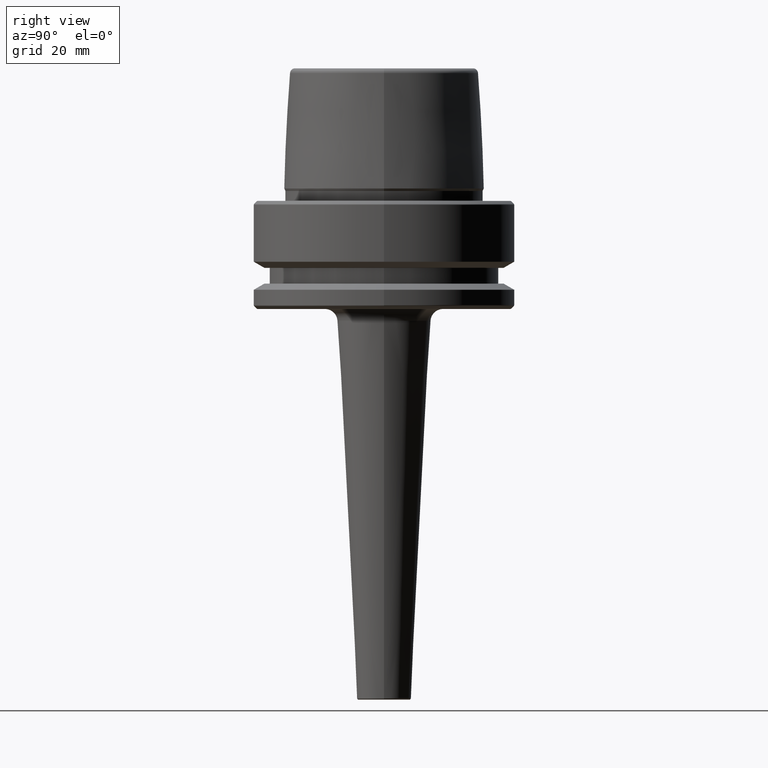
[diagram: clean part render]
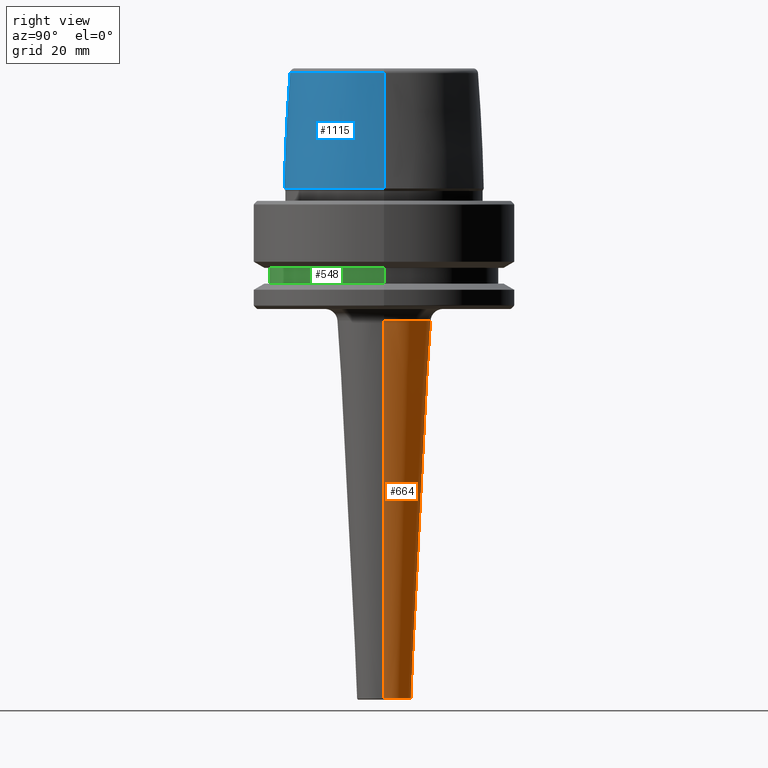
[diagram: same view with three faces highlighted in distinct colors, each labeled with its STEP entity id]
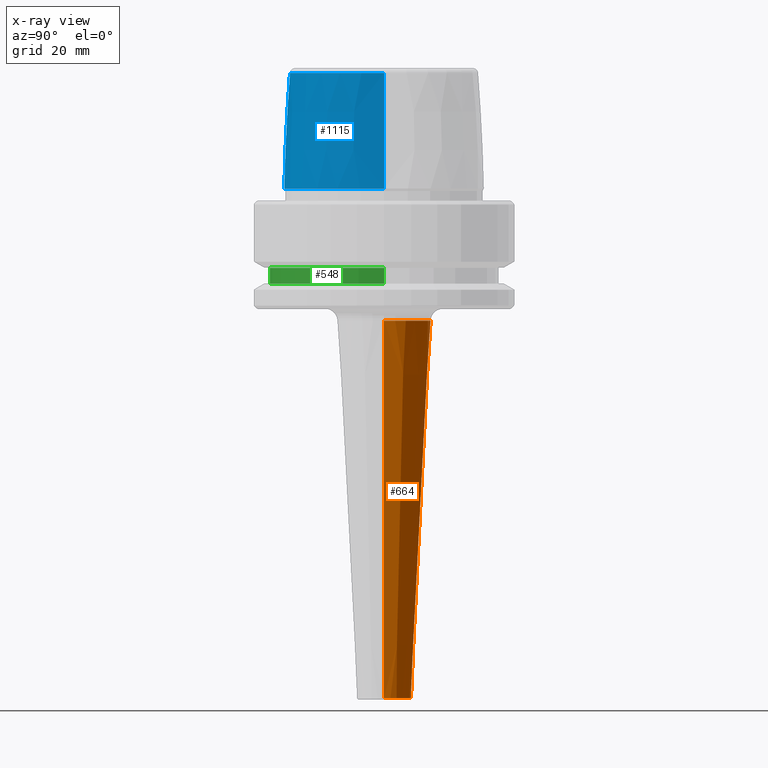
[diagram: x-ray of the same camera — body ghosted, the three highlighted faces saturated]
A machine part, right view with three faces highlighted in distinct colors.
The next image is the same camera in x-ray (body ghosted, the three faces saturated) — at least one of them is partly hidden behind the body in this view.
Their STEP definitions:

[orange] entity #664 — the highlighted conical surface has half-angle 3 deg.
#53 = DIRECTION ( 'NONE',  ( 1.000000000000000000, 0.0000000000000000000, 0.0000000000000000000 ) ) ;
#54 = DIRECTION ( 'NONE',  ( -0.0000000000000000000, -0.0000000000000000000, 1.000000000000000000 ) ) ;
#55 = EDGE_CURVE ( 'NONE', #398, #419, #407, .T. ) ;
#97 = ORIENTED_EDGE ( 'NONE', *, *, #804, .F. ) ;
#116 = DIRECTION ( 'NONE',  ( -0.0000000000000000000, -0.0000000000000000000, 1.000000000000000000 ) ) ;
#182 = AXIS2_PLACEMENT_3D ( 'NONE', #702, #116, #798 ) ;
#191 = DIRECTION ( 'NONE',  ( 0.05233595624294396000, 0.0000000000000000000, 0.9986295347545739400 ) ) ;
#221 = ORIENTED_EDGE ( 'NONE', *, *, #55, .T. ) ;
#235 = DIRECTION ( 'NONE',  ( 0.0000000000000000000, 0.0000000000000000000, -1.000000000000000000 ) ) ;
#250 = DIRECTION ( 'NONE',  ( -0.05233595624294396000, 6.409306129323725600E-018, 0.9986295347545739400 ) ) ;
#398 = VERTEX_POINT ( 'NONE', #848 ) ;
#407 = CIRCLE ( 'NONE', #1021, 11.27733634848680000 ) ;
#419 = VERTEX_POINT ( 'NONE', #667 ) ;
#473 = CONICAL_SURFACE ( 'NONE', #777, 6.519865987215876400, 0.05235987755983000800 ) ;
#541 = DIRECTION ( 'NONE',  ( 1.000000000000000000, 0.0000000000000000000, 0.0000000000000000000 ) ) ;
#634 = EDGE_CURVE ( 'NONE', #1188, #398, #1049, .T. ) ;
#647 = CARTESIAN_POINT ( 'NONE',  ( 0.0000000000000000000, 0.0000000000000000000, -119.6209343824971500 ) ) ;
#664 = ADVANCED_FACE ( 'NONE', ( #1143 ), #473, .T. ) ;
#667 = CARTESIAN_POINT ( 'NONE',  ( 11.27733634848680000, 0.0000000000000000000, -28.84299213127116700 ) ) ;
#679 = CARTESIAN_POINT ( 'NONE',  ( 6.519865987215876400, 0.0000000000000000000, -119.6209343824971500 ) ) ;
#702 = CARTESIAN_POINT ( 'NONE',  ( 0.0000000000000000000, 0.0000000000000000000, -119.6209343824971500 ) ) ;
#736 = CARTESIAN_POINT ( 'NONE',  ( -6.519865987215876400, 7.984533012113620700E-016, -119.6209343824971500 ) ) ;
#740 = EDGE_LOOP ( 'NONE', ( #941, #967, #221, #97 ) ) ;
#755 = VECTOR ( 'NONE', #250, 1000.000000000000100 ) ;
#777 = AXIS2_PLACEMENT_3D ( 'NONE', #647, #54, #541 ) ;
#798 = DIRECTION ( 'NONE',  ( 1.000000000000000000, 0.0000000000000000000, 0.0000000000000000000 ) ) ;
#804 = EDGE_CURVE ( 'NONE', #862, #419, #1238, .T. ) ;
#848 = CARTESIAN_POINT ( 'NONE',  ( -11.27733634848680000, 1.381075386208246000E-015, -28.84299213127116700 ) ) ;
#862 = VERTEX_POINT ( 'NONE', #1086 ) ;
#941 = ORIENTED_EDGE ( 'NONE', *, *, #1168, .T. ) ;
#967 = ORIENTED_EDGE ( 'NONE', *, *, #634, .T. ) ;
#968 = VECTOR ( 'NONE', #191, 1000.000000000000100 ) ;
#988 = CIRCLE ( 'NONE', #182, 6.519865987215876400 ) ;
#1021 = AXIS2_PLACEMENT_3D ( 'NONE', #1230, #235, #53 ) ;
#1049 = LINE ( 'NONE', #736, #755 ) ;
#1086 = CARTESIAN_POINT ( 'NONE',  ( 6.519865987215880000, 0.0000000000000000000, -119.6209343824971500 ) ) ;
#1143 = FACE_OUTER_BOUND ( 'NONE', #740, .T. ) ;
#1168 = EDGE_CURVE ( 'NONE', #862, #1188, #988, .T. ) ;
#1179 = CARTESIAN_POINT ( 'NONE',  ( -6.519865987215880000, 7.984533012113624700E-016, -119.6209343824971500 ) ) ;
#1188 = VERTEX_POINT ( 'NONE', #1179 ) ;
#1230 = CARTESIAN_POINT ( 'NONE',  ( 0.0000000000000000000, 0.0000000000000000000, -28.84299213127116700 ) ) ;
#1238 = LINE ( 'NONE', #679, #968 ) ;

[blue] entity #1115 — the highlighted conical surface has half-angle 2.868 deg.
#8 = CARTESIAN_POINT ( 'NONE',  ( -24.17032625081241900, 0.0000000000000000000, 3.000000000000002700 ) ) ;
#31 = CARTESIAN_POINT ( 'NONE',  ( 0.0000000000000000000, 0.0000000000000000000, 3.000000000000002700 ) ) ;
#34 = DIRECTION ( 'NONE',  ( -0.0000000000000000000, -0.0000000000000000000, 1.000000000000000000 ) ) ;
#48 = CARTESIAN_POINT ( 'NONE',  ( 24.17032625081241900, 2.960011267740467600E-015, 3.000000000000002700 ) ) ;
#58 = VERTEX_POINT ( 'NONE', #432 ) ;
#88 = ORIENTED_EDGE ( 'NONE', *, *, #934, .F. ) ;
#103 = DIRECTION ( 'NONE',  ( -0.0000000000000000000, -0.0000000000000000000, 1.000000000000000000 ) ) ;
#137 = LINE ( 'NONE', #8, #430 ) ;
#140 = DIRECTION ( 'NONE',  ( 1.000000000000000000, 0.0000000000000000000, 0.0000000000000000000 ) ) ;
#170 = CARTESIAN_POINT ( 'NONE',  ( 24.17032625081241900, 0.0000000000000000000, 3.000000000000002700 ) ) ;
#178 = LINE ( 'NONE', #48, #507 ) ;
#206 = DIRECTION ( 'NONE',  ( 1.000000000000000000, 0.0000000000000000000, 0.0000000000000000000 ) ) ;
#233 = FACE_OUTER_BOUND ( 'NONE', #1199, .T. ) ;
#281 = VERTEX_POINT ( 'NONE', #1037 ) ;
#317 = ORIENTED_EDGE ( 'NONE', *, *, #1187, .T. ) ;
#320 = VERTEX_POINT ( 'NONE', #170 ) ;
#385 = DIRECTION ( 'NONE',  ( -1.000000000000000000, 0.0000000000000000000, 0.0000000000000000000 ) ) ;
#389 = DIRECTION ( 'NONE',  ( 0.0000000000000000000, 0.0000000000000000000, -1.000000000000000000 ) ) ;
#430 = VECTOR ( 'NONE', #1069, 1000.000000000000200 ) ;
#432 = CARTESIAN_POINT ( 'NONE',  ( -24.17032625081241900, 2.960011267740467600E-015, 3.000000000000002700 ) ) ;
#507 = VECTOR ( 'NONE', #635, 1000.000000000000200 ) ;
#576 = EDGE_CURVE ( 'NONE', #58, #320, #983, .T. ) ;
#579 = EDGE_CURVE ( 'NONE', #964, #320, #178, .T. ) ;
#635 = DIRECTION ( 'NONE',  ( 0.05003611051310812000, 6.127656258166108900E-018, -0.9987474093306675200 ) ) ;
#650 = CARTESIAN_POINT ( 'NONE',  ( 0.0000000000000000000, 0.0000000000000000000, 3.000000000000002700 ) ) ;
#694 = ORIENTED_EDGE ( 'NONE', *, *, #579, .F. ) ;
#714 = CONICAL_SURFACE ( 'NONE', #978, 24.17032625081241900, 0.05005701257456005000 ) ;
#822 = CIRCLE ( 'NONE', #1013, 22.77957961851797100 ) ;
#853 = ORIENTED_EDGE ( 'NONE', *, *, #576, .T. ) ;
#881 = CARTESIAN_POINT ( 'NONE',  ( 0.0000000000000000000, 0.0000000000000000000, 30.76004333261571900 ) ) ;
#934 = EDGE_CURVE ( 'NONE', #281, #964, #822, .T. ) ;
#964 = VERTEX_POINT ( 'NONE', #1166 ) ;
#978 = AXIS2_PLACEMENT_3D ( 'NONE', #650, #389, #385 ) ;
#983 = CIRCLE ( 'NONE', #1096, 24.17032625081241900 ) ;
#1013 = AXIS2_PLACEMENT_3D ( 'NONE', #881, #103, #206 ) ;
#1037 = CARTESIAN_POINT ( 'NONE',  ( -22.77957961851797100, 0.0000000000000000000, 30.76004333261571900 ) ) ;
#1069 = DIRECTION ( 'NONE',  ( -0.05003611051310812000, 0.0000000000000000000, -0.9987474093306675200 ) ) ;
#1096 = AXIS2_PLACEMENT_3D ( 'NONE', #31, #34, #140 ) ;
#1115 = ADVANCED_FACE ( 'NONE', ( #233 ), #714, .T. ) ;
#1166 = CARTESIAN_POINT ( 'NONE',  ( 22.77957961851797100, 2.874852597157249900E-015, 30.76004333261571900 ) ) ;
#1187 = EDGE_CURVE ( 'NONE', #281, #58, #137, .T. ) ;
#1199 = EDGE_LOOP ( 'NONE', ( #694, #88, #317, #853 ) ) ;

[green] entity #548 — the highlighted cylindrical surface (partial cylindrical patch) has radius 27.5 mm, axis along (-0, -0, 1).
#39 = CIRCLE ( 'NONE', #1110, 27.49999999999999600 ) ;
#132 = VERTEX_POINT ( 'NONE', #249 ) ;
#148 = DIRECTION ( 'NONE',  ( 1.000000000000000000, 0.0000000000000000000, 0.0000000000000000000 ) ) ;
#203 = CARTESIAN_POINT ( 'NONE',  ( 27.49999999999999600, 0.0000000000000000000, 78.96908074195309300 ) ) ;
#228 = DIRECTION ( 'NONE',  ( 1.000000000000000000, 0.0000000000000000000, 0.0000000000000000000 ) ) ;
#249 = CARTESIAN_POINT ( 'NONE',  ( -27.49999999999999600, 3.367778697655220900E-015, -16.10000000000001600 ) ) ;
#251 = DIRECTION ( 'NONE',  ( -0.0000000000000000000, -0.0000000000000000000, 1.000000000000000000 ) ) ;
#275 = DIRECTION ( 'NONE',  ( -0.0000000000000000000, -0.0000000000000000000, 1.000000000000000000 ) ) ;
#300 = ORIENTED_EDGE ( 'NONE', *, *, #408, .F. ) ;
#305 = EDGE_LOOP ( 'NONE', ( #426, #742, #653, #300 ) ) ;
#333 = DIRECTION ( 'NONE',  ( -0.0000000000000000000, -0.0000000000000000000, 1.000000000000000000 ) ) ;
#340 = CARTESIAN_POINT ( 'NONE',  ( -27.49999999999999600, 3.367778697655220900E-015, 78.96908074195309300 ) ) ;
#403 = CARTESIAN_POINT ( 'NONE',  ( -27.49999999999999600, 3.367778697655220900E-015, -19.90000000000001600 ) ) ;
#408 = EDGE_CURVE ( 'NONE', #132, #427, #605, .T. ) ;
#426 = ORIENTED_EDGE ( 'NONE', *, *, #590, .F. ) ;
#427 = VERTEX_POINT ( 'NONE', #1137 ) ;
#530 = DIRECTION ( 'NONE',  ( -0.0000000000000000000, -0.0000000000000000000, 1.000000000000000000 ) ) ;
#548 = ADVANCED_FACE ( 'NONE', ( #1249 ), #824, .T. ) ;
#590 = EDGE_CURVE ( 'NONE', #1139, #132, #724, .T. ) ;
#605 = CIRCLE ( 'NONE', #885, 27.49999999999999600 ) ;
#653 = ORIENTED_EDGE ( 'NONE', *, *, #719, .T. ) ;
#684 = EDGE_CURVE ( 'NONE', #1139, #1003, #39, .T. ) ;
#719 = EDGE_CURVE ( 'NONE', #1003, #427, #1014, .T. ) ;
#724 = LINE ( 'NONE', #340, #1200 ) ;
#742 = ORIENTED_EDGE ( 'NONE', *, *, #684, .T. ) ;
#824 = CYLINDRICAL_SURFACE ( 'NONE', #898, 27.49999999999999600 ) ;
#869 = CARTESIAN_POINT ( 'NONE',  ( 0.0000000000000000000, 0.0000000000000000000, -16.10000000000001600 ) ) ;
#885 = AXIS2_PLACEMENT_3D ( 'NONE', #869, #275, #960 ) ;
#898 = AXIS2_PLACEMENT_3D ( 'NONE', #1201, #530, #228 ) ;
#960 = DIRECTION ( 'NONE',  ( 1.000000000000000000, 0.0000000000000000000, 0.0000000000000000000 ) ) ;
#975 = CARTESIAN_POINT ( 'NONE',  ( 27.49999999999999600, 0.0000000000000000000, -19.90000000000001600 ) ) ;
#1003 = VERTEX_POINT ( 'NONE', #975 ) ;
#1014 = LINE ( 'NONE', #203, #1099 ) ;
#1099 = VECTOR ( 'NONE', #251, 1000.000000000000000 ) ;
#1110 = AXIS2_PLACEMENT_3D ( 'NONE', #1214, #1116, #148 ) ;
#1116 = DIRECTION ( 'NONE',  ( -0.0000000000000000000, -0.0000000000000000000, 1.000000000000000000 ) ) ;
#1137 = CARTESIAN_POINT ( 'NONE',  ( 27.49999999999999600, 0.0000000000000000000, -16.10000000000001600 ) ) ;
#1139 = VERTEX_POINT ( 'NONE', #403 ) ;
#1200 = VECTOR ( 'NONE', #333, 1000.000000000000000 ) ;
#1201 = CARTESIAN_POINT ( 'NONE',  ( 0.0000000000000000000, 0.0000000000000000000, 78.96908074195309300 ) ) ;
#1214 = CARTESIAN_POINT ( 'NONE',  ( 0.0000000000000000000, 0.0000000000000000000, -19.90000000000001600 ) ) ;
#1249 = FACE_OUTER_BOUND ( 'NONE', #305, .T. ) ;